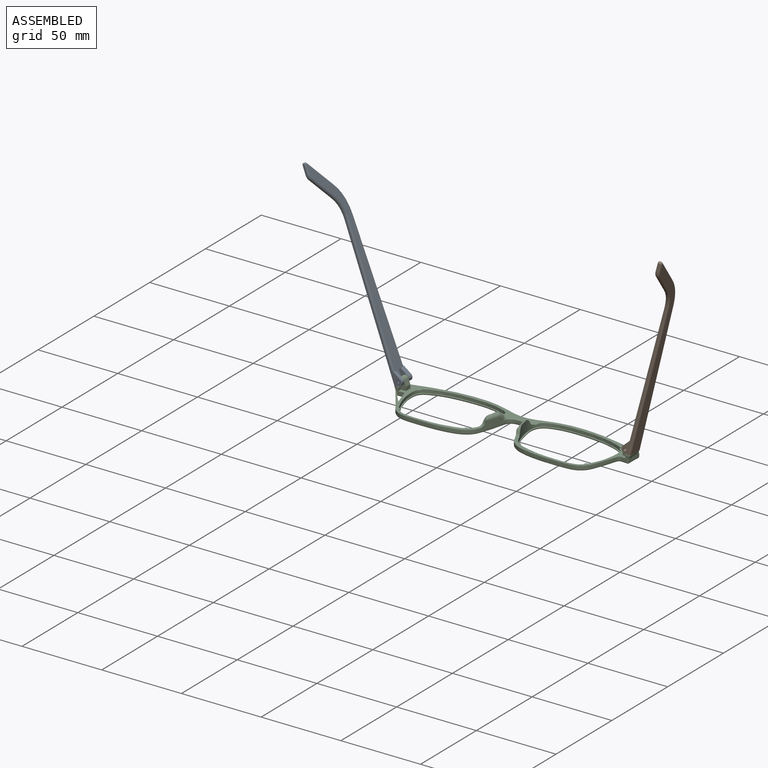
[diagram: assembled view]
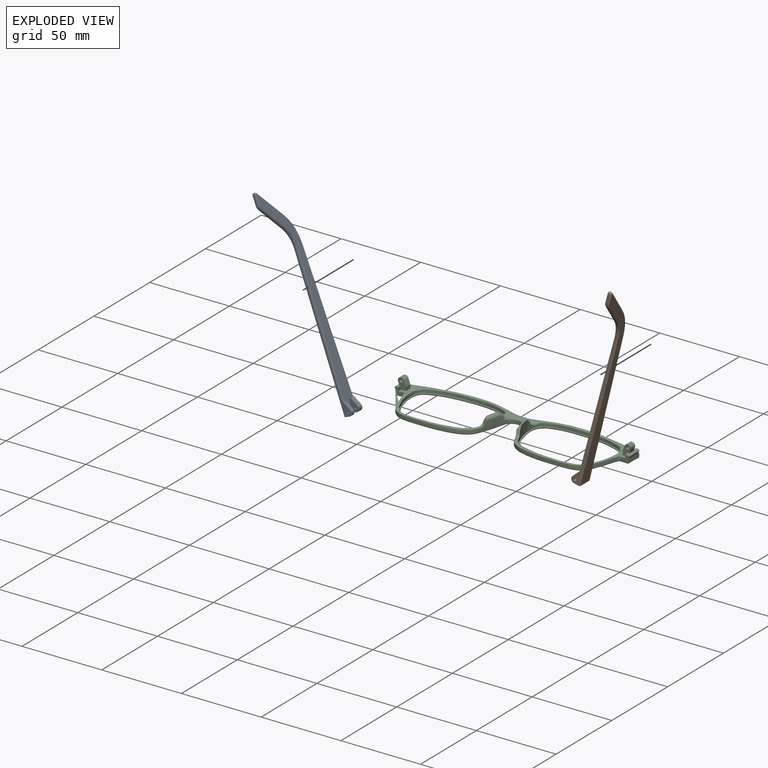
[diagram: exploded view]
GUIDED TOUR — MATED ASSEMBLY (Onshape document 0039c32968717a276d684d65, AutoMate assembly 0039c32968717a276d684d65_bb93f9b7f0a2c25e2d7dcd53_cebaa48934a4aa84a0d9ac6f_default)

This assembly has 3 components, labeled P0..P2 below (a component is one placed occurrence of a part; the same part can appear more than once), held together by 2 mates. A mate is a constraint between two components; its type names the relative motion it leaves free:
  REVOLUTE — leaves rotation about the listed axis free (a hinge).
Axis/direction vectors are unit vectors and 'through' points are millimeter coordinates, both in the assembly's world frame.

MATES
  1. REVOLUTE "Revolute 1": P0 <-> P2, axis (0.000, -1.000, 0.000) through (-60.89, 2.72, 1.22) mm
  2. REVOLUTE "Revolute 2": P1 <-> P2, axis (0.000, -1.000, 0.000) through (81.20, 2.72, 1.21) mm

ASSEMBLY ORDER
  1. P2 — the base component [order verified]
  2. P1 [order verified]
  3. P0 [order verified]
Order-tag legend:
  [order verified] — this step's position reverses a verified removal order: the component was checked to insert without passing through the ones already placed.

Of the 3 components, 0 carry the full construction recipe — the FeatureScript program that regenerates the part's solid from scratch; the rest are supplied as boundary geometry only.
Each toured component is shown spotlighted twice — in the assembled view, then in the exploded view, where a leader line traces a displaced component back to its assembled socket (saturated green if recipe-attached, orange if geometry-only; every other component desaturated gray) — followed by its recipe or geometry summary and the mates that hold it.
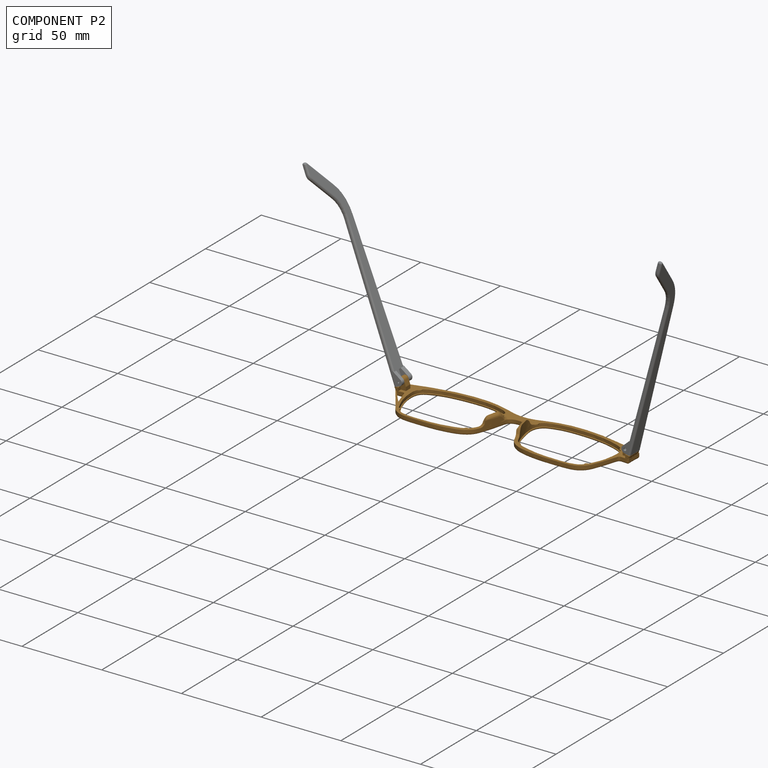
[diagram: component P2 — assembled]
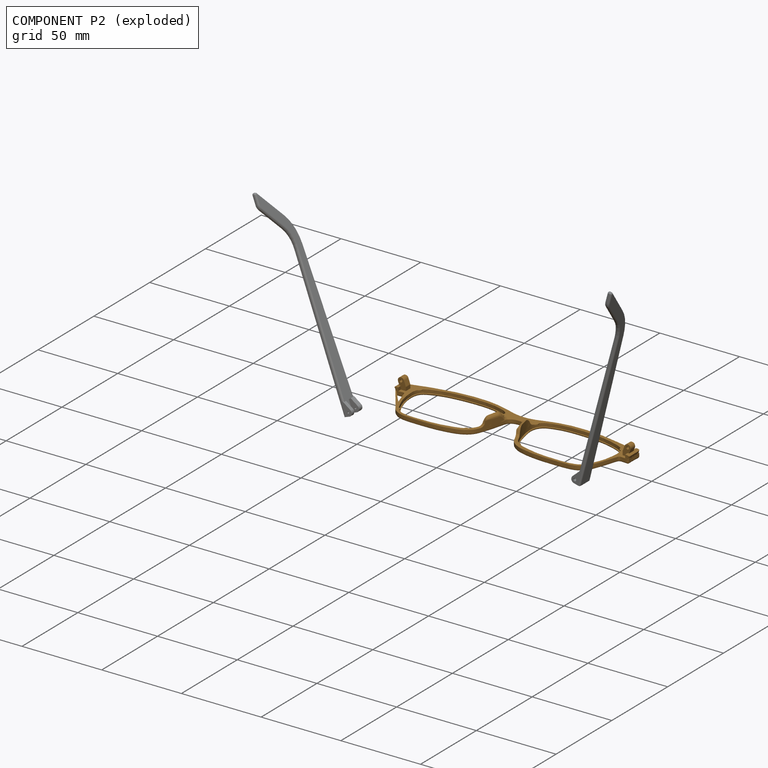
[diagram: component P2 — exploded]
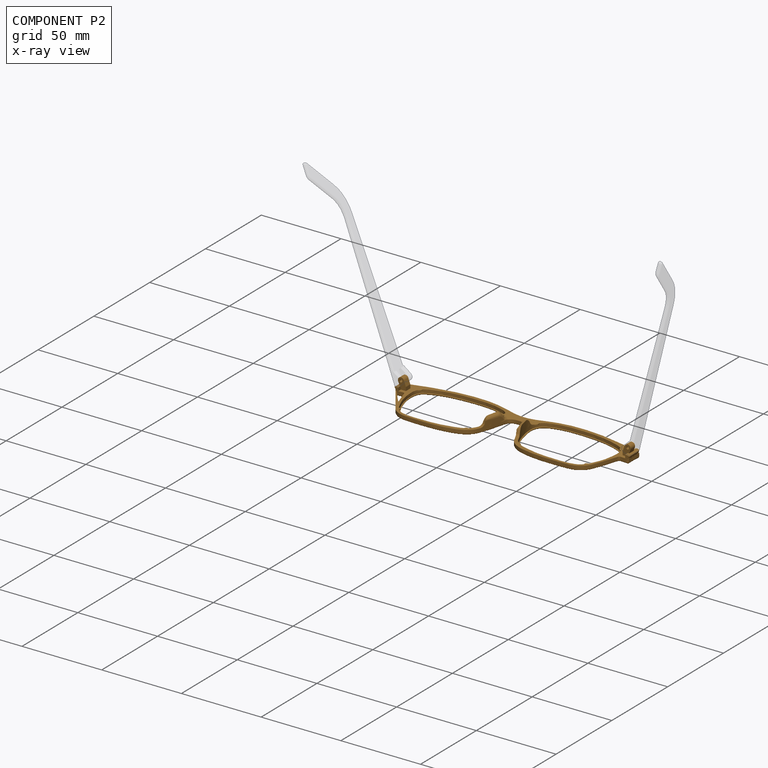
[diagram: component P2 — x-ray view]
COMPONENT P2 — geometry summary (no construction recipe available for this part):
  bounding box: 148.1 x 40.9 x 18.0 mm
  B-rep topology: 1 solid, 118 faces, 663 edges
  volume: 3293 mm^3 (3% of its bounding box)
Held by: REVOLUTE mate "Revolute 1" to P0; REVOLUTE mate "Revolute 2" to P1.
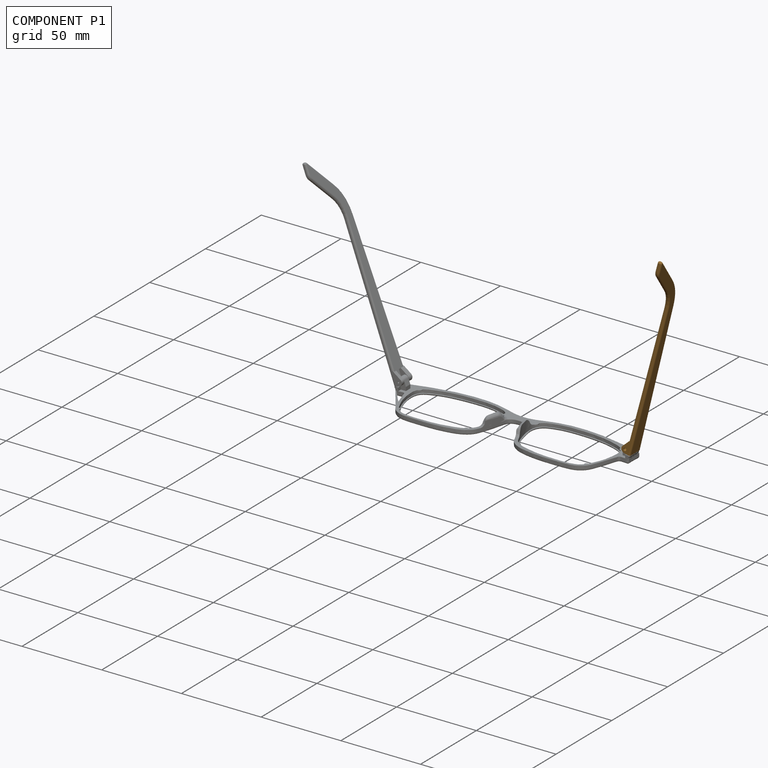
[diagram: component P1 — assembled]
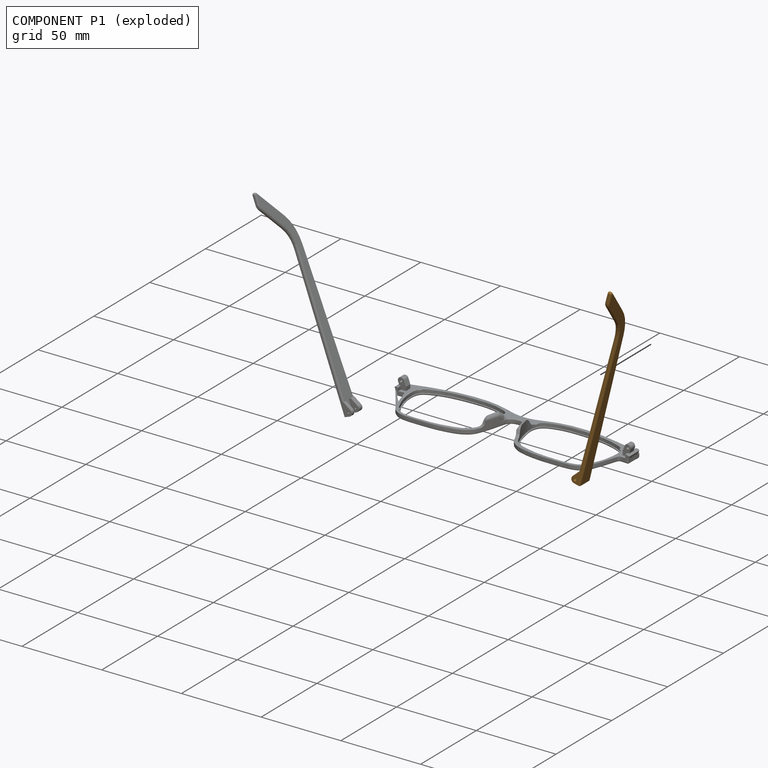
[diagram: component P1 — exploded]
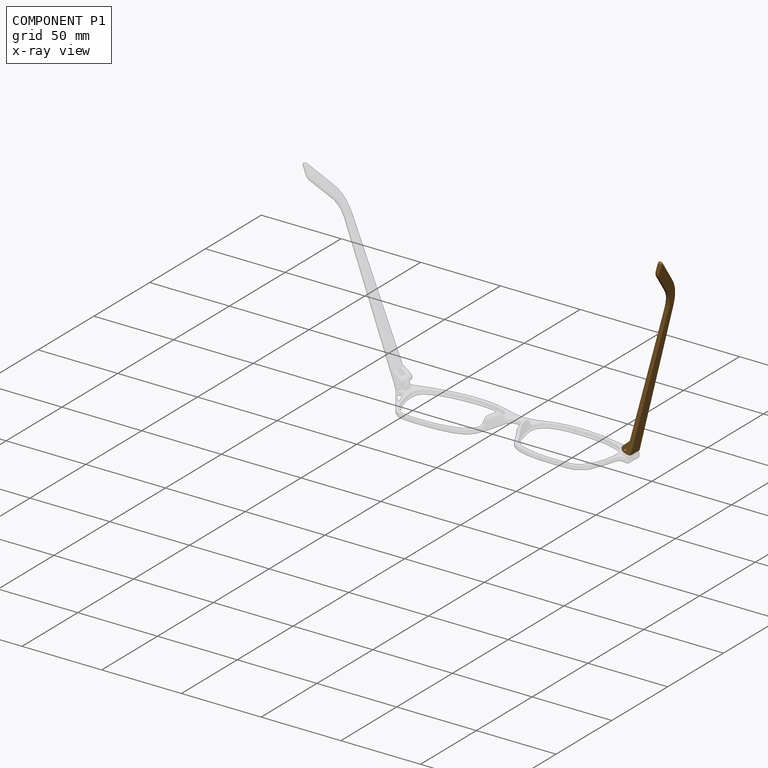
[diagram: component P1 — x-ray view]
COMPONENT P1 — geometry summary (no construction recipe available for this part):
  bounding box: 130.2 x 29.5 x 5.9 mm
  B-rep topology: 1 solid, 43 faces, 210 edges
  volume: 2415 mm^3 (11% of its bounding box)
Held by: REVOLUTE mate "Revolute 2" to P2.
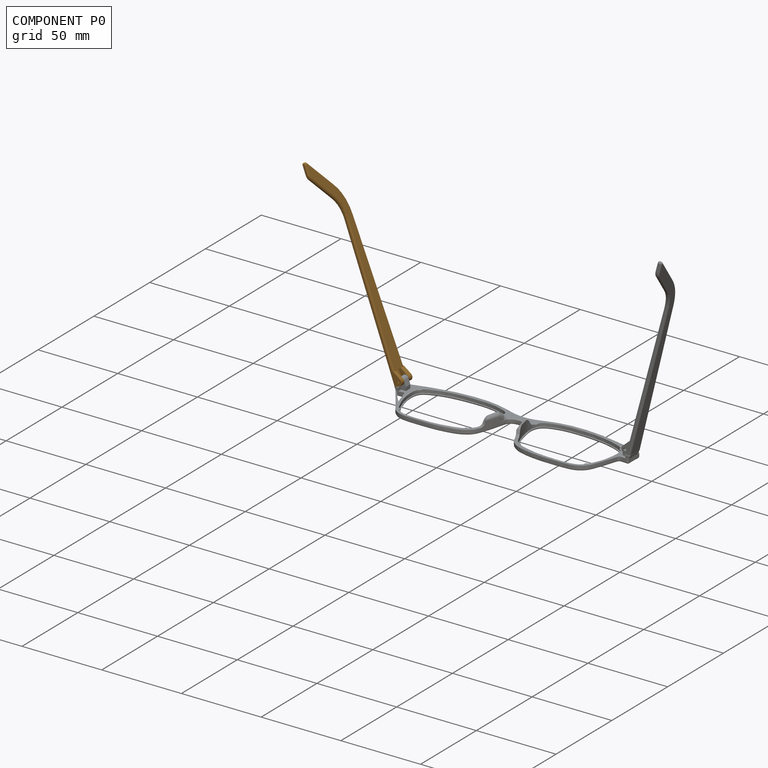
[diagram: component P0 — assembled]
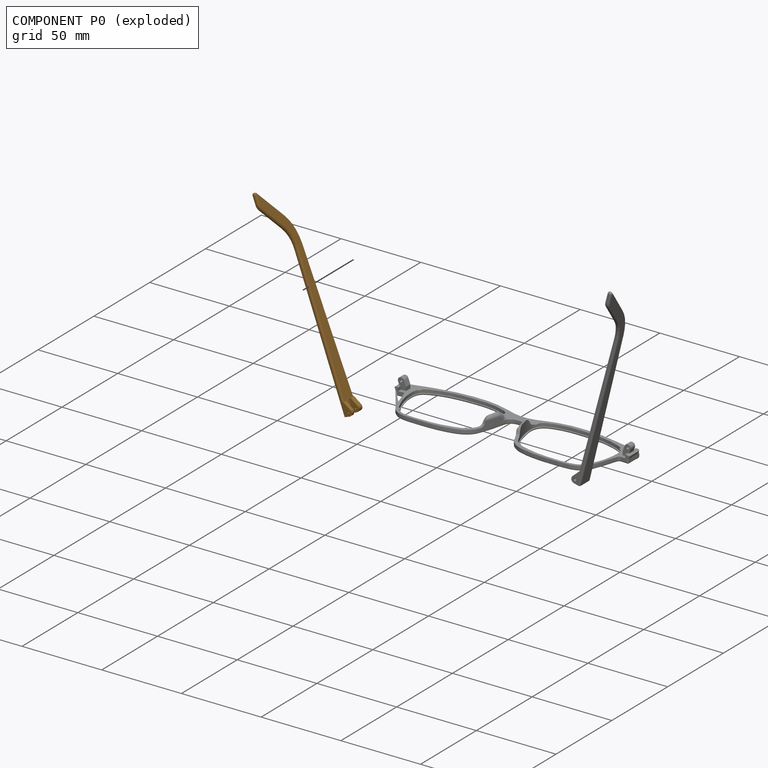
[diagram: component P0 — exploded]
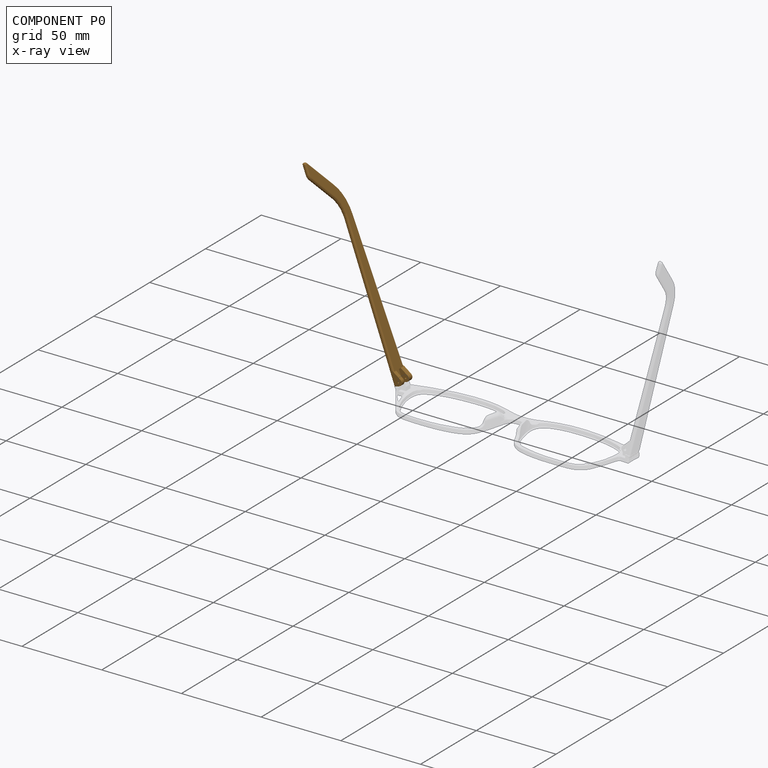
[diagram: component P0 — x-ray view]
COMPONENT P0 — geometry summary (no construction recipe available for this part):
  bounding box: 130.2 x 29.5 x 5.9 mm
  B-rep topology: 1 solid, 43 faces, 210 edges
  volume: 2424 mm^3 (11% of its bounding box)
Held by: REVOLUTE mate "Revolute 1" to P2.
PROVENANCE & LICENSES
Assembly (occurrences, transforms, mates, per-part STEP geometry): AutoMate dataset, Zenodo record 7776208, CC0.
Construction recipes: CADFS (HuggingFace VladPyatov/CADFS, CC-BY-4.0, layered over the ABC dataset), FeatureScript reconstruction programs keyed by ABC model id.
Join: ABC meta listings map ABC model id -> Onshape documentId; within a shared document, parts are matched by geometric signature (bounding-box dims + volume at 0.1% relative tolerance, exact B-rep face/solid counts).
Verification: no recipe attachments in this assembly (3 components, all geometry-only).
Renders: orthographic iso camera (az 35 / el 25); the floor grid conveys scale (grid pitch printed in each image; no ruler). In the exploded view each component is displaced by its stored offset vector: the offsets alone carry the explosion direction (mate normal/axis signs are not orientation cues and do not encode it), and separation distances are assigned per mate-chain, not proportionally to assembly-order depth.
